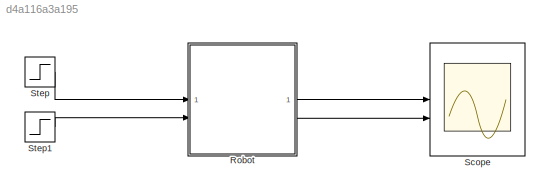
MODEL slx_d4a116a3a195
KIND model
CONFIG AbsTol = auto
CONFIG EnableMultiTasking = on
CONFIG FixedStep = 1/48
CONFIG MaxStep = .1
CONFIG MinStep = auto
CONFIG RelTol = 1e-6
CONFIG SampleTimeConstraint = Unconstrained
CONFIG SolverName = FixedStepAuto
CONFIG StartTime = 0.0
CONFIG StopTime = 10
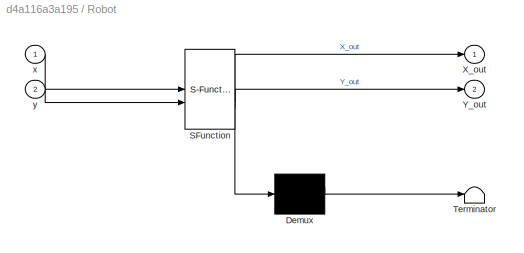
BLOCK [SubSystem] Robot
  ErrorFcn = Stateflow.Translate.translate
  PermitHierarchicalResolution = ExplicitOnly
  SFBlockType = Chart
  TreatAsAtomicUnit = on
BLOCK [Demux] Robot/ Demux 
  Outputs = 1
BLOCK [S-Function] Robot/ SFunction 
  EnableBusSupport = on
  FunctionName = sf_sfun
  PortCounts = [2 3]
  SFcnIsStateOwnerBlock = off
  SFunctionDeploymentMode = off
  Tag = Stateflow S-Function 1
BLOCK [Terminator] Robot/ Terminator 
BLOCK [Outport] Robot/X_out
  VectorParamsAs1DForOutWhenUnconnected = off
BLOCK [Outport] Robot/Y_out
  Port = 2
  VectorParamsAs1DForOutWhenUnconnected = off
BLOCK [Inport] Robot/x
BLOCK [Inport] Robot/y
  Port = 2
BLOCK [Scope] Scope
  Floating = off
  NumInputPorts = 2
  ScopeSpecificationString = Simulink.scopes.TimeScopeBlockCfg('CurrentConfiguration', extmgr.ConfigurationSet(extmgr.Configuration('Core','General UI',true,'MessageLogAutoOpenMode','for warn/fail messages','ShowCloseAll',true,'ShowBringAllForward',true),extmgr.Configuration('Core','Source UI',true,'PlaybackToolbar',true),extmgr.Configuration('Sources','WiredSimulink',true,'PointsPerSignal',50000,'DataLoggingLimitDataPoints',...<+2798ch>
BLOCK [Step] Step
  After = 4
  SampleTime = 0
BLOCK [Step] Step1
  After = 10
  SampleTime = 0
LINE Robot:1 -> Scope:1
LINE Robot:2 -> Scope:2
LINE Step1:1 -> Robot:2
LINE Step:1 -> Robot:1
CHART Robot states=6 transitions=10
  STATE_LABEL 'Down\ndu:\n  % derivatives\n  X_dot = 0;\n  Y_dot = -8;\n  % outputs\n  X_out = X;\n  Y_out = Y;'
  STATE_LABEL 'Stopped\ndu:\n  % derivatives\n  X_dot = 0;\n  Y_dot = 0;\n  % outputs\n  X_out = X;\n  Y_out = Y;'
  STATE_LABEL 'Up\ndu:\n  % derivatives\n  X_dot = 0;\n  Y_dot = 8;\n  % outputs\n  X_out = X;\n  Y_out = Y;\n'
  STATE_LABEL 'Left\ndu:\n  % derivatives\n  X_dot = -6;\n  Y_dot = 0;\n  % outputs\n  X_out = X;\n  Y_out = Y;'
  STATE_LABEL 'Straight\ndu:\n  % derivatives\n  X_dot = 5*((x-X)/((X-x)^2+(Y-y)^2)^(0.5));\n  Y_dot = 5*((y-Y)/((X-x)^2+(Y-y)^2)^(0.5));\n  % outputs\n  X_out = X;\n  Y_out = Y;'
  STATE_LABEL 'Right\ndu:\n  % derivatives\n  X_dot = 6;\n  Y_dot = 0;\n  % outputs\n  X_out = X;\n  Y_out = Y;'
CHART  states=0 transitions=0
